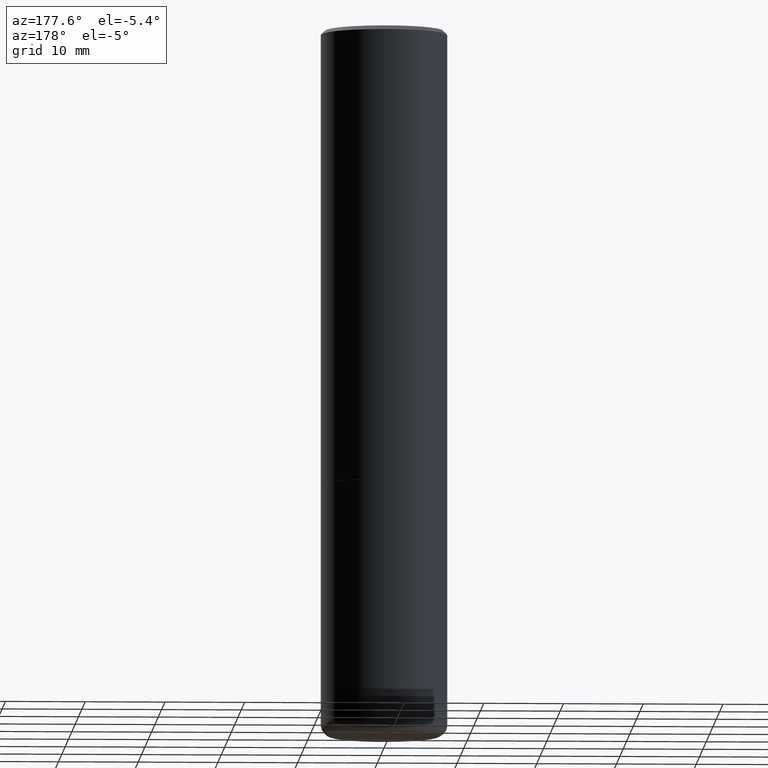
[diagram: clean part render]
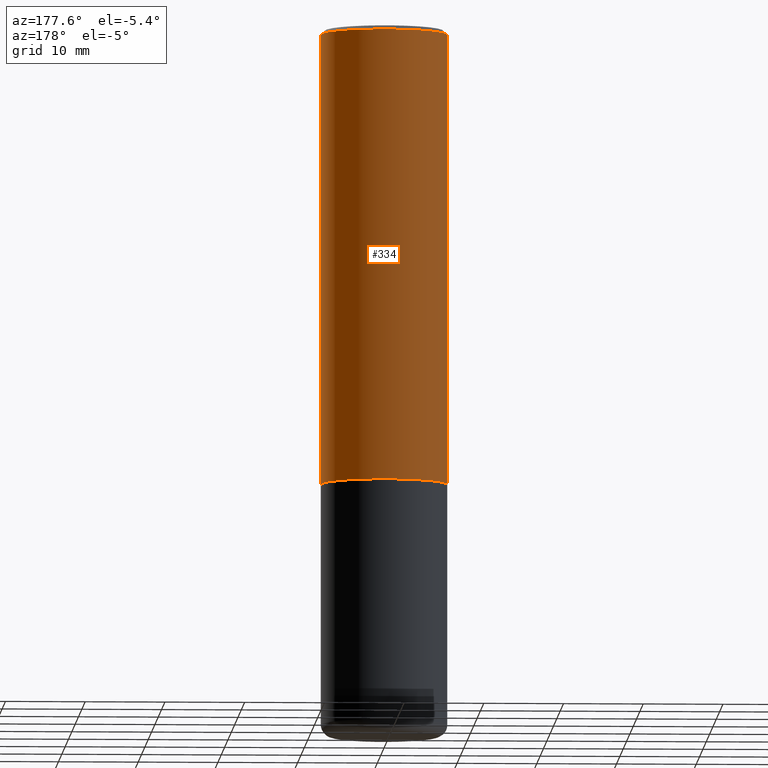
[diagram: same view with one face highlighted and labeled with its STEP entity id]
A machine part, auxiliary view. The second image highlights one B-rep face of the part: STEP entity #334.
In plain terms, the highlighted cylindrical surface (partial cylindrical patch) has radius 7.9375 mm, axis along (-0, 0, 1).
Its self-contained STEP definition (entity closure, byte-faithful):
#6 = CIRCLE ( 'NONE', #351, 0.3125000000000002220 ) ;
#15 = CARTESIAN_POINT ( 'NONE',  ( 4.890937612370294178E-31, -6.982962677686321191E-17, -0.02000000000000008715 ) ) ;
#17 = DIRECTION ( 'NONE',  ( -2.445468806185136597E-29, 3.491481338843145583E-15, 1.000000000000000000 ) ) ;
#41 = VERTEX_POINT ( 'NONE', #106 ) ;
#50 = DIRECTION ( 'NONE',  ( -2.445468806185136877E-29, 3.491481338843145188E-15, 1.000000000000000000 ) ) ;
#56 = CARTESIAN_POINT ( 'NONE',  ( 0.3125000000000001665, -2.182175836776959530E-15, 1.523805242436230636E-29 ) ) ;
#60 = EDGE_CURVE ( 'NONE', #298, #361, #174, .T. ) ;
#64 = EDGE_CURVE ( 'NONE', #323, #361, #111, .T. ) ;
#101 = DIRECTION ( 'NONE',  ( 1.000000000000000000, -6.982962677686266711E-15, 4.876176775795935232E-29 ) ) ;
#106 = CARTESIAN_POINT ( 'NONE',  ( 0.3125000000000002220, -1.003451736783519379E-14, -2.248999999999999666 ) ) ;
#111 = CIRCLE ( 'NONE', #221, 0.3125000000000000000 ) ;
#125 = CARTESIAN_POINT ( 'NONE',  ( 0.3125000000000000000, -2.213735251080466911E-15, -0.02000000000000008715 ) ) ;
#141 = EDGE_LOOP ( 'NONE', ( #143, #215, #392, #328 ) ) ;
#143 = ORIENTED_EDGE ( 'NONE', *, *, #178, .T. ) ;
#149 = EDGE_CURVE ( 'NONE', #41, #323, #227, .T. ) ;
#167 = AXIS2_PLACEMENT_3D ( 'NONE', #312, #182, #101 ) ;
#174 = LINE ( 'NONE', #366, #414 ) ;
#178 = EDGE_CURVE ( 'NONE', #41, #298, #6, .T. ) ;
#182 = DIRECTION ( 'NONE',  ( -2.445468806185136597E-29, 3.491481338843145583E-15, 1.000000000000000000 ) ) ;
#215 = ORIENTED_EDGE ( 'NONE', *, *, #60, .T. ) ;
#221 = AXIS2_PLACEMENT_3D ( 'NONE', #15, #17, #257 ) ;
#227 = LINE ( 'NONE', #56, #388 ) ;
#239 = CARTESIAN_POINT ( 'NONE',  ( -0.3125000000000000000, 2.112346210000095443E-15, -0.02000000000000008715 ) ) ;
#257 = DIRECTION ( 'NONE',  ( 1.000000000000000000, -6.982962677686265133E-15, 0.000000000000000000 ) ) ;
#259 = DIRECTION ( 'NONE',  ( 1.000000000000000000, -6.982962677686266711E-15, 0.000000000000000000 ) ) ;
#285 = FACE_OUTER_BOUND ( 'NONE', #141, .T. ) ;
#298 = VERTEX_POINT ( 'NONE', #412 ) ;
#312 = CARTESIAN_POINT ( 'NONE',  ( 0.000000000000000000, 0.000000000000000000, 0.000000000000000000 ) ) ;
#323 = VERTEX_POINT ( 'NONE', #125 ) ;
#328 = ORIENTED_EDGE ( 'NONE', *, *, #149, .F. ) ;
#334 = ADVANCED_FACE ( 'NONE', ( #285 ), #344, .T. ) ;
#344 = CYLINDRICAL_SURFACE ( 'NONE', #167, 0.3125000000000001665 ) ;
#351 = AXIS2_PLACEMENT_3D ( 'NONE', #372, #370, #259 ) ;
#361 = VERTEX_POINT ( 'NONE', #239 ) ;
#366 = CARTESIAN_POINT ( 'NONE',  ( -0.3125000000000001665, 2.220446049250314264E-15, -1.537167215704658792E-29 ) ) ;
#370 = DIRECTION ( 'NONE',  ( -2.445468806185136597E-29, 3.491481338843145583E-15, 1.000000000000000000 ) ) ;
#372 = CARTESIAN_POINT ( 'NONE',  ( 5.499859345110371740E-29, -7.852341531058233864E-15, -2.248999999999999666 ) ) ;
#388 = VECTOR ( 'NONE', #50, 39.37007874015748143 ) ;
#392 = ORIENTED_EDGE ( 'NONE', *, *, #64, .F. ) ;
#407 = DIRECTION ( 'NONE',  ( -2.445468806185136877E-29, 3.491481338843145188E-15, 1.000000000000000000 ) ) ;
#412 = CARTESIAN_POINT ( 'NONE',  ( -0.3125000000000002220, -1.740639529667233725E-15, -2.248999999999999666 ) ) ;
#414 = VECTOR ( 'NONE', #407, 39.37007874015748143 ) ;